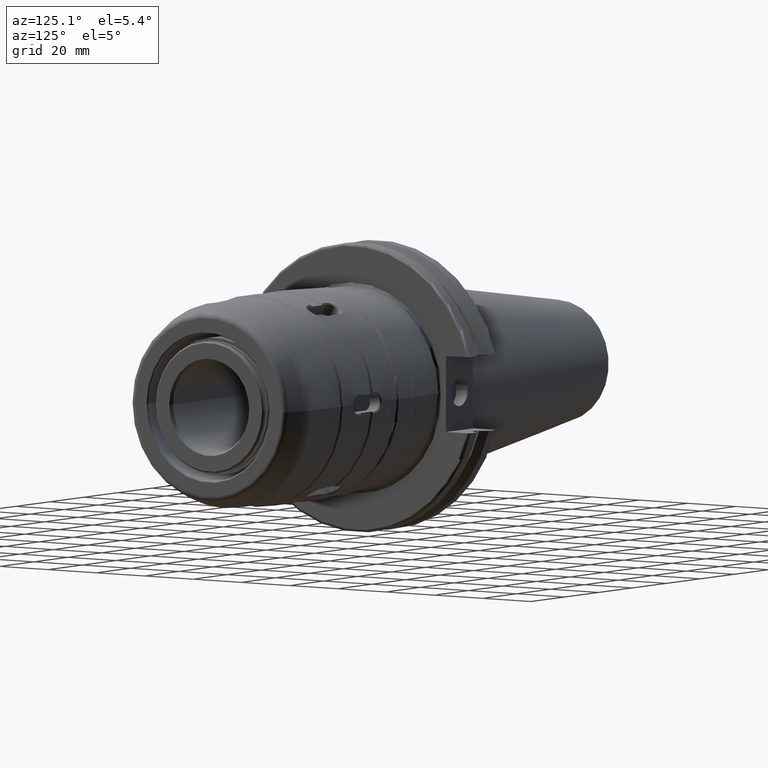
[diagram: clean part render]
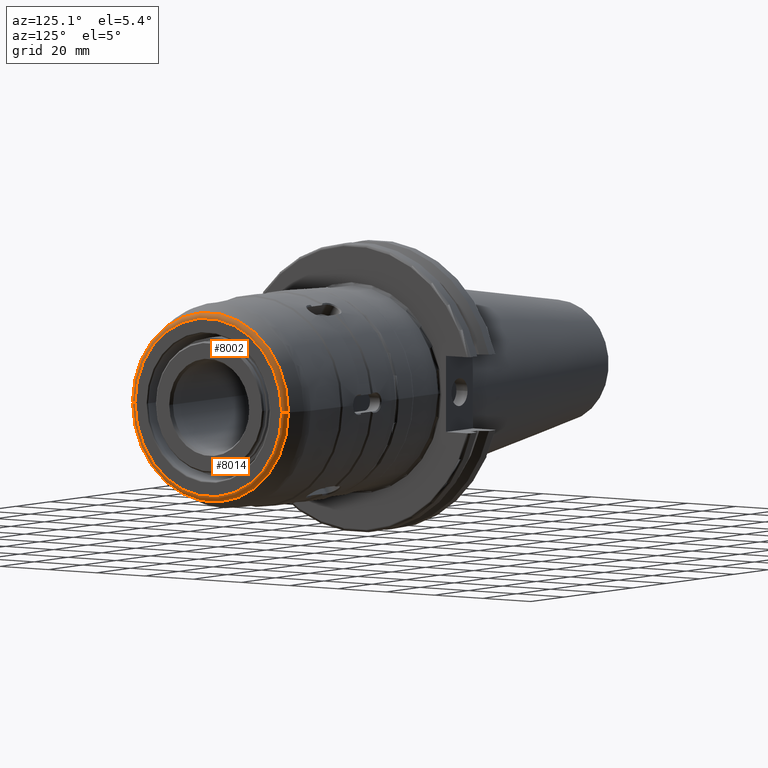
[diagram: same view with one multi-face feature highlighted, each face labeled with its STEP entity id]
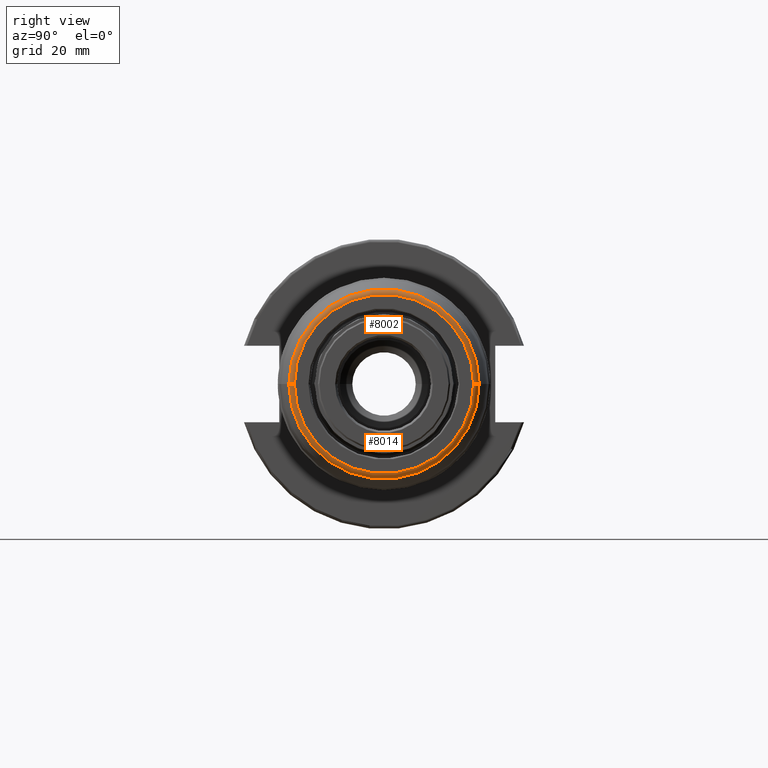
[diagram: same view with one multi-face feature highlighted, each face labeled with its STEP entity id]
A machine part, auxiliary view. The highlighted faces form ONE feature: a constant-radius fillet chain: 2 tangent blend faces with common blend radius 2 mm. The faces share edges in the B-rep.
A second angle (right view) of the same feature is appended — it is thin or edge-on in the first view.
Their STEP definitions:
[1] entity #8002 (Torus):
#2971=CARTESIAN_POINT('',(0.E0,0.E0,0.E0));
#2972=DIRECTION('',(1.E0,0.E0,0.E0));
#2973=DIRECTION('',(0.E0,1.E0,-2.032534202227E-9));
#2974=AXIS2_PLACEMENT_3D('',#2971,#2972,#2973);
#4750=CARTESIAN_POINT('',(-1.315959713349E0,0.E0,0.E0));
#4751=DIRECTION('',(1.E0,0.E0,0.E0));
#4752=DIRECTION('',(0.E0,1.E0,2.913175754480E-10));
#4753=AXIS2_PLACEMENT_3D('',#4750,#4751,#4752);
#4755=CARTESIAN_POINT('',(-2.E0,3.038390614189E1,-6.175633518457E-8));
#4756=DIRECTION('',(0.E0,2.032534424622E-9,1.E0));
#4757=DIRECTION('',(1.E0,0.E0,0.E0));
#4758=AXIS2_PLACEMENT_3D('',#4755,#4756,#4757);
#4760=CARTESIAN_POINT('',(-2.E0,-3.038390614189E1,6.175633143757E-8));
#4761=DIRECTION('',(0.E0,-2.032534301456E-9,-1.E0));
#4762=DIRECTION('',(1.E0,0.E0,0.E0));
#4763=AXIS2_PLACEMENT_3D('',#4760,#4761,#4762);
#4941=CARTESIAN_POINT('',(0.E0,3.038390614189E1,-6.175632843064E-8));
#4942=CARTESIAN_POINT('',(0.E0,-3.038390614189E1,6.175633215159E-8));
#4943=VERTEX_POINT('',#4941);
#4944=VERTEX_POINT('',#4942);
#4945=CARTESIAN_POINT('',(-1.315959713349E0,3.226329138346E1,
9.398863821802E-9));
#4946=CARTESIAN_POINT('',(-1.315959713349E0,-3.226329138346E1,
-9.398859870689E-9));
#4947=VERTEX_POINT('',#4945);
#4948=VERTEX_POINT('',#4946);
#7989=CARTESIAN_POINT('',(-2.E0,0.E0,0.E0));
#7990=DIRECTION('',(-1.E0,0.E0,0.E0));
#7991=DIRECTION('',(0.E0,9.999698351914E-1,-7.767155679999E-3));
#7992=AXIS2_PLACEMENT_3D('',#7989,#7990,#7991);
#7993=TOROIDAL_SURFACE('',#7992,3.038390614189E1,2.E0);
#7994=ORIENTED_EDGE('',*,*,#5090,.T.);
#7996=ORIENTED_EDGE('',*,*,#7995,.T.);
#7997=ORIENTED_EDGE('',*,*,#7983,.F.);
#7999=ORIENTED_EDGE('',*,*,#7998,.F.);
#8000=EDGE_LOOP('',(#7994,#7996,#7997,#7999));
#8001=FACE_OUTER_BOUND('',#8000,.F.);
#8002=ADVANCED_FACE('',(#8001),#7993,.T.);
#2975=CIRCLE('',#2974,3.038390614189E1);
#4754=CIRCLE('',#4753,3.226329138346E1);
#4759=CIRCLE('',#4758,2.E0);
#4764=CIRCLE('',#4763,2.E0);
#5090=EDGE_CURVE('',#4943,#4944,#2975,.T.);
#7983=EDGE_CURVE('',#4947,#4948,#4754,.T.);
#7995=EDGE_CURVE('',#4944,#4948,#4764,.T.);
#7998=EDGE_CURVE('',#4943,#4947,#4759,.T.);
[2] entity #8014 (Torus):
#2976=CARTESIAN_POINT('',(0.E0,0.E0,0.E0));
#2977=DIRECTION('',(1.E0,0.E0,0.E0));
#2978=DIRECTION('',(0.E0,-1.E0,2.032534079762E-9));
#2979=AXIS2_PLACEMENT_3D('',#2976,#2977,#2978);
#4736=CARTESIAN_POINT('',(-1.315959713349E0,0.E0,0.E0));
#4737=DIRECTION('',(1.E0,0.E0,0.E0));
#4738=DIRECTION('',(0.E0,-1.E0,-2.913181420019E-10));
#4739=AXIS2_PLACEMENT_3D('',#4736,#4737,#4738);
#4755=CARTESIAN_POINT('',(-2.E0,3.038390614189E1,-6.175633518457E-8));
#4756=DIRECTION('',(0.E0,2.032534424622E-9,1.E0));
#4757=DIRECTION('',(1.E0,0.E0,0.E0));
#4758=AXIS2_PLACEMENT_3D('',#4755,#4756,#4757);
#4760=CARTESIAN_POINT('',(-2.E0,-3.038390614189E1,6.175633143757E-8));
#4761=DIRECTION('',(0.E0,-2.032534301456E-9,-1.E0));
#4762=DIRECTION('',(1.E0,0.E0,0.E0));
#4763=AXIS2_PLACEMENT_3D('',#4760,#4761,#4762);
#4941=CARTESIAN_POINT('',(0.E0,3.038390614189E1,-6.175632843064E-8));
#4942=CARTESIAN_POINT('',(0.E0,-3.038390614189E1,6.175633215159E-8));
#4943=VERTEX_POINT('',#4941);
#4944=VERTEX_POINT('',#4942);
#4945=CARTESIAN_POINT('',(-1.315959713349E0,3.226329138346E1,
9.398863821802E-9));
#4946=CARTESIAN_POINT('',(-1.315959713349E0,-3.226329138346E1,
-9.398859870689E-9));
#4947=VERTEX_POINT('',#4945);
#4948=VERTEX_POINT('',#4946);
#8003=CARTESIAN_POINT('',(-2.E0,0.E0,0.E0));
#8004=DIRECTION('',(-1.E0,0.E0,0.E0));
#8005=DIRECTION('',(0.E0,-9.999698351914E-1,7.767155679999E-3));
#8006=AXIS2_PLACEMENT_3D('',#8003,#8004,#8005);
#8007=TOROIDAL_SURFACE('',#8006,3.038390614189E1,2.E0);
#8008=ORIENTED_EDGE('',*,*,#5092,.T.);
#8009=ORIENTED_EDGE('',*,*,#7998,.T.);
#8010=ORIENTED_EDGE('',*,*,#7969,.F.);
#8011=ORIENTED_EDGE('',*,*,#7995,.F.);
#8012=EDGE_LOOP('',(#8008,#8009,#8010,#8011));
#8013=FACE_OUTER_BOUND('',#8012,.F.);
#8014=ADVANCED_FACE('',(#8013),#8007,.T.);
#2980=CIRCLE('',#2979,3.038390614189E1);
#4740=CIRCLE('',#4739,3.226329138346E1);
#4759=CIRCLE('',#4758,2.E0);
#4764=CIRCLE('',#4763,2.E0);
#5092=EDGE_CURVE('',#4944,#4943,#2980,.T.);
#7969=EDGE_CURVE('',#4948,#4947,#4740,.T.);
#7995=EDGE_CURVE('',#4944,#4948,#4764,.T.);
#7998=EDGE_CURVE('',#4943,#4947,#4759,.T.);